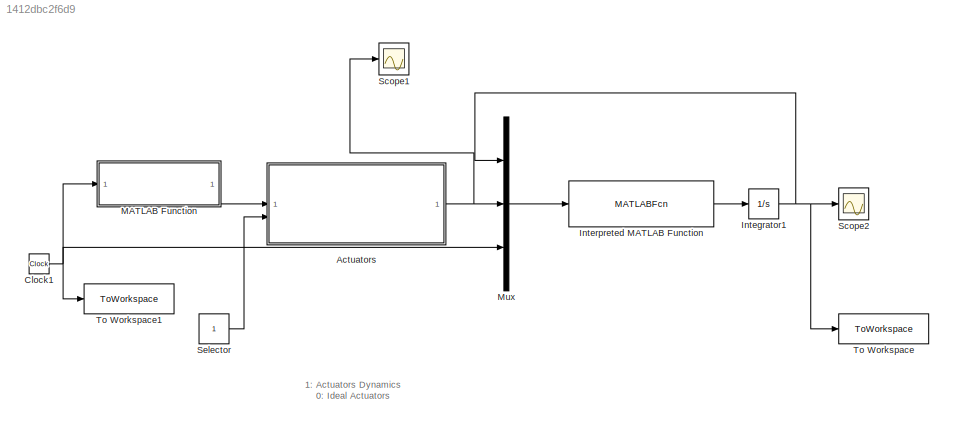
MODEL slx_1412dbc2f6d9
KIND model
CONFIG AbsTol = auto
CONFIG EnableMultiTasking = off
CONFIG FixedStep = auto
CONFIG MaxStep = auto
CONFIG MinStep = auto
CONFIG RelTol = 1e-3
CONFIG SampleTimeConstraint = Unconstrained
CONFIG SolverName = ode15s
CONFIG StartTime = 0.0
CONFIG StopTime = 100.0
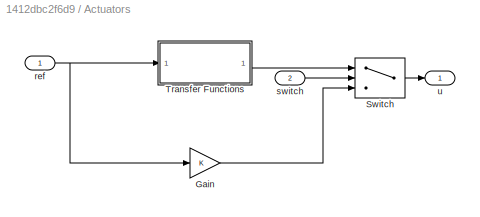
BLOCK [SubSystem] Actuators
BLOCK [Gain] Actuators/Gain
BLOCK [Switch] Actuators/Switch
  Criteria = u2 > Threshold
  InputSameDT = off
  SaturateOnIntegerOverflow = off
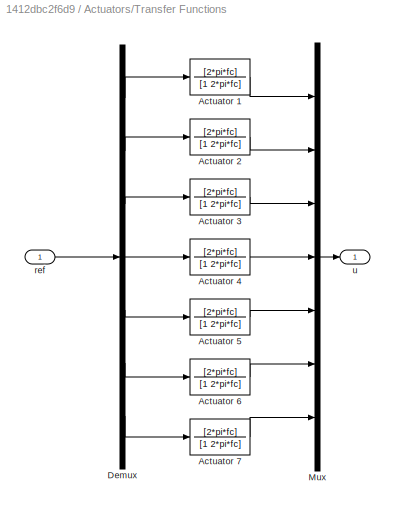
BLOCK [SubSystem] Actuators/Transfer Functions
BLOCK [TransferFcn] Actuators/Transfer Functions/Actuator 1
  Denominator = [1 2*pi*fc]
  Numerator = [2*pi*fc]
BLOCK [TransferFcn] Actuators/Transfer Functions/Actuator 2
  Denominator = [1 2*pi*fc]
  Numerator = [2*pi*fc]
BLOCK [TransferFcn] Actuators/Transfer Functions/Actuator 3
  Denominator = [1 2*pi*fc]
  Numerator = [2*pi*fc]
BLOCK [TransferFcn] Actuators/Transfer Functions/Actuator 4
  Denominator = [1 2*pi*fc]
  Numerator = [2*pi*fc]
BLOCK [TransferFcn] Actuators/Transfer Functions/Actuator 5
  Denominator = [1 2*pi*fc]
  Numerator = [2*pi*fc]
BLOCK [TransferFcn] Actuators/Transfer Functions/Actuator 6
  Denominator = [1 2*pi*fc]
  Numerator = [2*pi*fc]
BLOCK [TransferFcn] Actuators/Transfer Functions/Actuator 7
  Denominator = [1 2*pi*fc]
  Numerator = [2*pi*fc]
BLOCK [Demux] Actuators/Transfer Functions/Demux
  Outputs = 7
BLOCK [Mux] Actuators/Transfer Functions/Mux
  DisplayOption = bar
  Inputs = 7
BLOCK [Inport] Actuators/Transfer Functions/ref
BLOCK [Outport] Actuators/Transfer Functions/u
BLOCK [Inport] Actuators/ref
BLOCK [Inport] Actuators/switch
  Port = 2
BLOCK [Outport] Actuators/u
BLOCK [Clock] Clock1
BLOCK [Integrator] Integrator1
  InitialCondition = x0
BLOCK [MATLABFcn] Interpreted MATLAB Function
  MATLABFcn = sorosim_handle(u(1:nx), u(nx + 1:nx + nu), u(end))
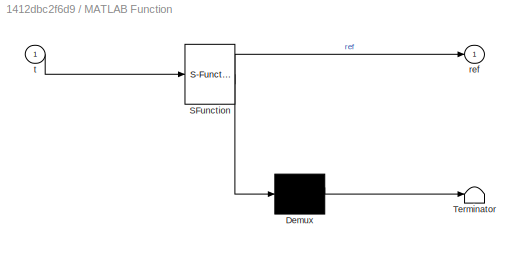
BLOCK [SubSystem] MATLAB Function
  ErrorFcn = Stateflow.Translate.translate
  PermitHierarchicalResolution = ExplicitOnly
  SFBlockType = MATLAB Function
  TreatAsAtomicUnit = on
BLOCK [Demux] MATLAB Function/ Demux 
  Outputs = 1
BLOCK [S-Function] MATLAB Function/ SFunction 
  EnableBusSupport = off
  FunctionName = sf_sfun
  PortCounts = [1 2]
  SFcnIsStateOwnerBlock = off
  SFunctionDeploymentMode = off
  Tag = Stateflow S-Function 2
BLOCK [Terminator] MATLAB Function/ Terminator 
BLOCK [Outport] MATLAB Function/ref
BLOCK [Inport] MATLAB Function/t
BLOCK [Mux] Mux
  DisplayOption = bar
  Inputs = 3
BLOCK [Scope] Scope1
  ActiveDisplayYMaximum = 3124.9997
  ActiveDisplayYMinimum = -3124.99979
  DataLoggingVariableName = ScopeData1
  Floating = off
  GraphicalSettings = {"GraphicalSettings":{"LegacySettings":true,"Style":{"AxesScalingProperties":{"ScaleAxesLimitsAtStop":false},"Style":{"AxesColor":"[0 0 0]","ChannelNames":[""],"ColorOrder":"[1 0.909803921568627 0.392156862745098;0.149019607843137 0.549019607843137 0.866666666666667;0.96078431372549 0.466666666666667 0.16078431372549;0.286274509803922 0.858823529411765 0.250980392156863;0.752941176470588 0.3607843...<+531ch>
  MultipleDisplayCache = [{"MaxYLimMag":3124.99979,"MaxYLimReal":3124.9997,"MinYLimMag":0,"MinYLimReal":-3124.99979,"PlotAsMagnitudePhase":false,"ShowGrid":true,"ShowLegend":false,"Title":"%<SignalLabel>","YLabel":""}]
  NumInputPorts = 1
  WasSavedAsWebScope = on
  WindowPosition = [1 49 1920 955]
BLOCK [Scope] Scope2
  ActiveDisplayYMaximum = 120.15295
  ActiveDisplayYMinimum = -96.9994
  DataLoggingVariableName = ScopeData1
  Floating = off
  GraphicalSettings = {"GraphicalSettings":{"LegacySettings":true,"Style":{"AxesScalingProperties":{"ScaleAxesLimitsAtStop":false},"Style":{"AxesColor":"[0 0 0]","ChannelNames":[""],"ColorOrder":"[1 0.909803921568627 0.392156862745098;0.149019607843137 0.549019607843137 0.866666666666667;0.96078431372549 0.466666666666667 0.16078431372549;0.286274509803922 0.858823529411765 0.250980392156863;0.752941176470588 0.3607843...<+619ch>
  MultipleDisplayCache = [{"MaxYLimMag":120.15295,"MaxYLimReal":120.15295,"MinYLimMag":0,"MinYLimReal":-96.9994,"PlotAsMagnitudePhase":false,"ShowGrid":true,"ShowLegend":false,"Title":"%<SignalLabel>","YLabel":""}]
  NumInputPorts = 1
  ScopeFrameLocation = window
  WasSavedAsWebScope = on
  WindowPosition = [1.000000,49.000000,1709.000000,955.000000,]
BLOCK [Constant] Selector
BLOCK [ToWorkspace] To Workspace
  FixptAsFi = on
  MaxDataPoints = inf
  SampleTime = -1
  SaveFormat = Timeseries
  VariableName = simout
BLOCK [ToWorkspace] To Workspace1
  FixptAsFi = on
  MaxDataPoints = inf
  SampleTime = -1
  SaveFormat = Timeseries
  VariableName = simout1
ANNOTATION (root): 1: Actuators Dynamics 0: Ideal Actuators
LINE Actuators/Gain:1 -> Actuators/Switch:3
LINE Actuators/Switch:1 -> Actuators/u:1
LINE Actuators/Transfer Functions/Actuator 1:1 -> Actuators/Transfer Functions/Mux:1
LINE Actuators/Transfer Functions/Actuator 2:1 -> Actuators/Transfer Functions/Mux:2
LINE Actuators/Transfer Functions/Actuator 3:1 -> Actuators/Transfer Functions/Mux:3
LINE Actuators/Transfer Functions/Actuator 4:1 -> Actuators/Transfer Functions/Mux:4
LINE Actuators/Transfer Functions/Actuator 5:1 -> Actuators/Transfer Functions/Mux:5
LINE Actuators/Transfer Functions/Actuator 6:1 -> Actuators/Transfer Functions/Mux:6
LINE Actuators/Transfer Functions/Actuator 7:1 -> Actuators/Transfer Functions/Mux:7
LINE Actuators/Transfer Functions/Demux:1 -> Actuators/Transfer Functions/Actuator 1:1
LINE Actuators/Transfer Functions/Demux:2 -> Actuators/Transfer Functions/Actuator 2:1
LINE Actuators/Transfer Functions/Demux:3 -> Actuators/Transfer Functions/Actuator 3:1
LINE Actuators/Transfer Functions/Demux:4 -> Actuators/Transfer Functions/Actuator 4:1
LINE Actuators/Transfer Functions/Demux:5 -> Actuators/Transfer Functions/Actuator 5:1
LINE Actuators/Transfer Functions/Demux:6 -> Actuators/Transfer Functions/Actuator 6:1
LINE Actuators/Transfer Functions/Demux:7 -> Actuators/Transfer Functions/Actuator 7:1
LINE Actuators/Transfer Functions/Mux:1 -> Actuators/Transfer Functions/u:1
LINE Actuators/Transfer Functions/ref:1 -> Actuators/Transfer Functions/Demux:1
LINE Actuators/Transfer Functions:1 -> Actuators/Switch:1
NET Actuators/ref:1 -> Actuators/Gain:1, Actuators/Transfer Functions:1
LINE Actuators/switch:1 -> Actuators/Switch:2
NET Actuators:1 -> Mux:2, Scope1:1
NET Clock1:1 -> MATLAB Function:1, Mux:3, To Workspace1:1
NET Integrator1:1 -> Mux:1, Scope2:1, To Workspace:1
LINE Interpreted MATLAB Function:1 -> Integrator1:1
LINE MATLAB Function:1 -> Actuators:1
LINE Mux:1 -> Interpreted MATLAB Function:1
LINE Selector:1 -> Actuators:2
note: NET lines group one-source signal fan-out (src -> all destinations, sorted); 1:1 wires keep LINE
CHART MATLAB Function states=1 transitions=1
  STATE_LABEL 'eML_blk_kernel()'
  STATE_LABEL 'SCRIPT:\nfunction ref = signal_generation(t) \n    gain = blkdiag(1.0e+3*eye(3), 1.0e+3*eye(4));\n    ref = gain*chirp(t, 7, 1, 1e+0);\nend'
CHART  states=0 transitions=0
